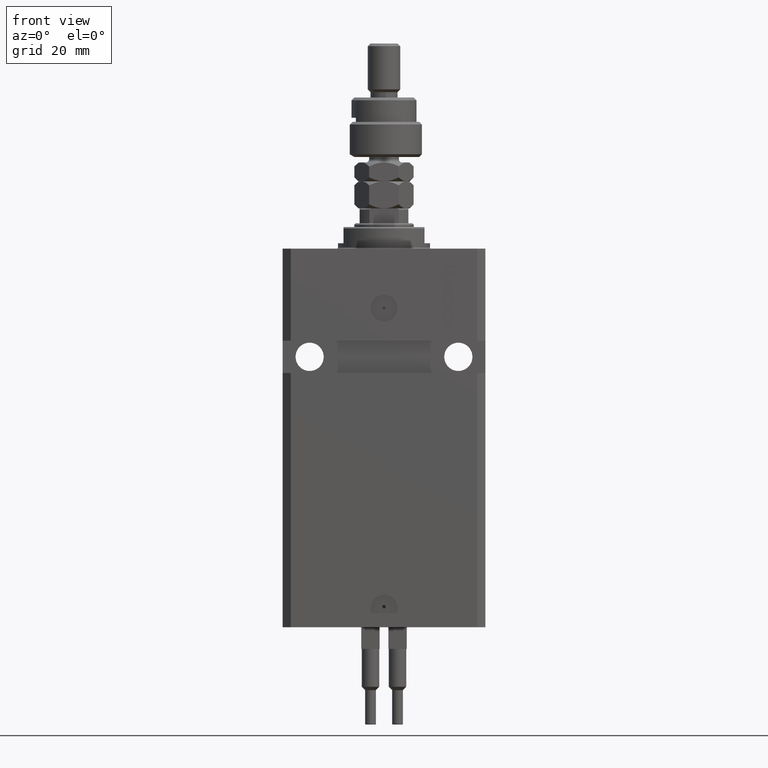
[diagram: clean part render]
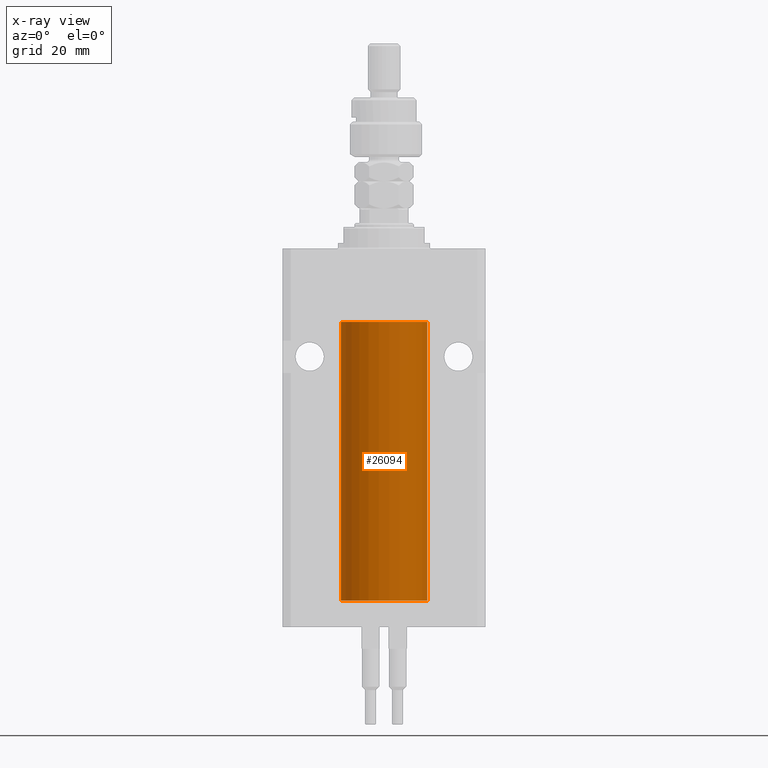
[diagram: x-ray — body ghosted, one internal face saturated and labeled with its STEP entity id]
A machine part, front view, then the same camera in x-ray: the body is ghosted and one INTERNAL B-rep face — a face not visible from any outside direction — is saturated and labeled: STEP entity #26094.
In plain terms, the highlighted cylindrical surface (partial cylindrical patch) has radius 16 mm, axis along (0, 0, 1).
Its self-contained STEP definition (entity closure, byte-faithful):
#822 = CARTESIAN_POINT ( 'NONE',  ( 16.00000000000000000, 0.000000000000000000, -130.0999999999999943 ) ) ;
#1250 = LINE ( 'NONE', #21367, #41615 ) ;
#1508 = DIRECTION ( 'NONE',  ( -0.000000000000000000, -0.000000000000000000, 1.000000000000000000 ) ) ;
#2552 = VECTOR ( 'NONE', #12960, 1000.000000000000000 ) ;
#2652 = EDGE_CURVE ( 'NONE', #13941, #44715, #1250, .T. ) ;
#4684 = LINE ( 'NONE', #822, #2552 ) ;
#4914 = CYLINDRICAL_SURFACE ( 'NONE', #21660, 16.00000000000000000 ) ;
#5956 = VERTEX_POINT ( 'NONE', #39217 ) ;
#7048 = CARTESIAN_POINT ( 'NONE',  ( 16.00000000000013145, 3.665533114689029904E-13, -127.3749999999965752 ) ) ;
#7084 = CARTESIAN_POINT ( 'NONE',  ( -16.00000000000013145, 3.685127464164956467E-13, -128.6250000000034390 ) ) ;
#7307 = CIRCLE ( 'NONE', #29511, 16.00000000000000000 ) ;
#7585 = CARTESIAN_POINT ( 'NONE',  ( -15.99071965633095793, -0.5569502390237165423, -128.3270950821868439 ) ) ;
#8714 = EDGE_CURVE ( 'NONE', #13614, #5956, #26204, .T. ) ;
#8852 = CARTESIAN_POINT ( 'NONE',  ( -15.99069874693027948, -0.5575440858643410103, -127.6738242501145066 ) ) ;
#9541 = CARTESIAN_POINT ( 'NONE',  ( 15.99707785788560521, -0.3267997233067349017, -128.5571521527664345 ) ) ;
#10310 = CARTESIAN_POINT ( 'NONE',  ( 15.99070553365076996, -0.5573460204199366386, -128.3264689786301176 ) ) ;
#12493 = EDGE_CURVE ( 'NONE', #43375, #44715, #7307, .T. ) ;
#12960 = DIRECTION ( 'NONE',  ( -0.000000000000000000, -0.000000000000000000, 1.000000000000000000 ) ) ;
#13452 = DIRECTION ( 'NONE',  ( -0.000000000000000000, -0.000000000000000000, 1.000000000000000000 ) ) ;
#13614 = VERTEX_POINT ( 'NONE', #37859 ) ;
#13777 = EDGE_LOOP ( 'NONE', ( #23627, #23385, #19193, #29576, #37231, #28020, #44033, #48612, #25225 ) ) ;
#13941 = VERTEX_POINT ( 'NONE', #7048 ) ;
#14817 = CARTESIAN_POINT ( 'NONE',  ( 16.00000000000000355, -0.1632201307032006554, -127.3749999999998010 ) ) ;
#15067 = CARTESIAN_POINT ( 'NONE',  ( 15.98778830858102040, -0.6250000000001306732, -127.8350147931928689 ) ) ;
#16457 = CARTESIAN_POINT ( 'NONE',  ( 16.00000000000000000, 0.000000000000000000, -27.10000000000000142 ) ) ;
#16583 = EDGE_CURVE ( 'NONE', #28279, #34253, #44442, .T. ) ;
#17087 = CARTESIAN_POINT ( 'NONE',  ( -16.00000000000000000, 1.959434878635765131E-15, -130.0999999999999943 ) ) ;
#17667 = DIRECTION ( 'NONE',  ( 1.000000000000000000, 0.000000000000000000, 0.000000000000000000 ) ) ;
#17901 = EDGE_CURVE ( 'NONE', #13941, #26396, #44399, .T. ) ;
#18747 = VECTOR ( 'NONE', #25829, 1000.000000000000000 ) ;
#18771 = CARTESIAN_POINT ( 'NONE',  ( -16.00000000000013145, 3.685127464164956467E-13, -128.6250000000034390 ) ) ;
#19170 = CARTESIAN_POINT ( 'NONE',  ( 15.98778830858101685, -0.6250000000001232348, -128.0000000000000000 ) ) ;
#19193 = ORIENTED_EDGE ( 'NONE', *, *, #16583, .T. ) ;
#19214 = DIRECTION ( 'NONE',  ( 0.000000000000000000, 0.000000000000000000, 1.000000000000000000 ) ) ;
#19670 = CARTESIAN_POINT ( 'NONE',  ( 15.99071289786271954, -0.5571474671814827806, -127.6731966548882440 ) ) ;
#20682 = CARTESIAN_POINT ( 'NONE',  ( -15.98779367741636648, -0.6248626626677442619, -128.1653963198503732 ) ) ;
#21367 = CARTESIAN_POINT ( 'NONE',  ( 16.00000000000000000, 0.000000000000000000, -130.0999999999999943 ) ) ;
#21626 = CARTESIAN_POINT ( 'NONE',  ( 16.00000000000000000, -0.1650734421240379612, -128.6250000000000568 ) ) ;
#21660 = AXIS2_PLACEMENT_3D ( 'NONE', #44891, #13452, #36899 ) ;
#21883 = CARTESIAN_POINT ( 'NONE',  ( 16.00000000000000000, 2.199125140786256469E-15, -128.6250000000000284 ) ) ;
#22083 = CARTESIAN_POINT ( 'NONE',  ( -16.00000000000000000, -1.314639473218082033E-14, -127.3749999999999858 ) ) ;
#22086 = AXIS2_PLACEMENT_3D ( 'NONE', #22816, #19214, #35187 ) ;
#22816 = CARTESIAN_POINT ( 'NONE',  ( 0.000000000000000000, 0.000000000000000000, -130.0999999999999943 ) ) ;
#23385 = ORIENTED_EDGE ( 'NONE', *, *, #47263, .T. ) ;
#23627 = ORIENTED_EDGE ( 'NONE', *, *, #8714, .F. ) ;
#25225 = ORIENTED_EDGE ( 'NONE', *, *, #50421, .F. ) ;
#25741 = CARTESIAN_POINT ( 'NONE',  ( 15.98778830858102040, -0.6250000000001159073, -128.1648119328233690 ) ) ;
#25829 = DIRECTION ( 'NONE',  ( -0.000000000000000000, -0.000000000000000000, 1.000000000000000000 ) ) ;
#25840 = B_SPLINE_CURVE_WITH_KNOTS ( 'NONE', 3,
 ( #45368, #25741, #10310, #9541, #21626, #21883 ),
 .UNSPECIFIED., .F., .F.,
 ( 4, 2, 4 ),
 ( 0.002931623410139905066, 0.003419811200989341087, 0.003907998991838777109 ),
 .UNSPECIFIED. ) ;
#26094 = ADVANCED_FACE ( 'NONE', ( #39990 ), #4914, .F. ) ;
#26204 = CIRCLE ( 'NONE', #22086, 16.00000000000000000 ) ;
#26396 = VERTEX_POINT ( 'NONE', #35049 ) ;
#27160 = CARTESIAN_POINT ( 'NONE',  ( -16.00000000000000711, -0.1631344205875858155, -128.6250000000001705 ) ) ;
#28020 = ORIENTED_EDGE ( 'NONE', *, *, #2652, .F. ) ;
#28279 = VERTEX_POINT ( 'NONE', #18771 ) ;
#29511 = AXIS2_PLACEMENT_3D ( 'NONE', #37527, #32879, #17667 ) ;
#29576 = ORIENTED_EDGE ( 'NONE', *, *, #43157, .T. ) ;
#32539 = CARTESIAN_POINT ( 'NONE',  ( -16.00000000000000000, -1.314639473218082033E-14, -127.3749999999999858 ) ) ;
#32879 = DIRECTION ( 'NONE',  ( 0.000000000000000000, 0.000000000000000000, 1.000000000000000000 ) ) ;
#33056 = LINE ( 'NONE', #34081, #18747 ) ;
#34081 = CARTESIAN_POINT ( 'NONE',  ( -16.00000000000000000, 1.959434878635765131E-15, -130.0999999999999943 ) ) ;
#34253 = VERTEX_POINT ( 'NONE', #22083 ) ;
#35049 = CARTESIAN_POINT ( 'NONE',  ( 15.98778830858101685, -0.6250000000001232348, -128.0000000000000000 ) ) ;
#35187 = DIRECTION ( 'NONE',  ( 1.000000000000000000, 0.000000000000000000, 0.000000000000000000 ) ) ;
#36427 = LINE ( 'NONE', #17087, #39499 ) ;
#36899 = DIRECTION ( 'NONE',  ( 1.000000000000000000, 0.000000000000000000, 0.000000000000000000 ) ) ;
#37231 = ORIENTED_EDGE ( 'NONE', *, *, #12493, .T. ) ;
#37527 = CARTESIAN_POINT ( 'NONE',  ( 0.000000000000000000, 0.000000000000000000, -27.10000000000000142 ) ) ;
#37560 = EDGE_CURVE ( 'NONE', #26396, #37931, #25840, .T. ) ;
#37859 = CARTESIAN_POINT ( 'NONE',  ( -16.00000000000000000, 1.959434878635765131E-15, -130.0999999999999943 ) ) ;
#37931 = VERTEX_POINT ( 'NONE', #38373 ) ;
#38373 = CARTESIAN_POINT ( 'NONE',  ( 16.00000000000000000, 2.199125140786256469E-15, -128.6250000000000284 ) ) ;
#38779 = CARTESIAN_POINT ( 'NONE',  ( 15.99708487730508821, -0.3264777333248704561, -127.4426616680992339 ) ) ;
#39217 = CARTESIAN_POINT ( 'NONE',  ( 16.00000000000000000, 0.000000000000000000, -130.0999999999999943 ) ) ;
#39499 = VECTOR ( 'NONE', #49072, 1000.000000000000000 ) ;
#39990 = FACE_OUTER_BOUND ( 'NONE', #13777, .T. ) ;
#41615 = VECTOR ( 'NONE', #1508, 1000.000000000000000 ) ;
#42900 = CARTESIAN_POINT ( 'NONE',  ( -15.99708815688950381, -0.3263115027448994510, -128.5574096919822580 ) ) ;
#43150 = CARTESIAN_POINT ( 'NONE',  ( -16.00000000000000000, -0.1651602165840369285, -127.3749999999999858 ) ) ;
#43157 = EDGE_CURVE ( 'NONE', #34253, #43375, #33056, .T. ) ;
#43375 = VERTEX_POINT ( 'NONE', #50825 ) ;
#43910 = CARTESIAN_POINT ( 'NONE',  ( -15.99707459521409625, -0.3269651631532018987, -127.4429184892856028 ) ) ;
#44033 = ORIENTED_EDGE ( 'NONE', *, *, #17901, .T. ) ;
#44399 = B_SPLINE_CURVE_WITH_KNOTS ( 'NONE', 3,
 ( #50378, #14817, #38779, #19670, #15067, #19170 ),
 .UNSPECIFIED., .F., .F.,
 ( 4, 2, 4 ),
 ( 0.001954221322144558768, 0.002442922366142232134, 0.002931623410139905066 ),
 .UNSPECIFIED. ) ;
#44442 = B_SPLINE_CURVE_WITH_KNOTS ( 'NONE', 3,
 ( #7084, #27160, #42900, #7585, #20682, #47772, #8852, #43910, #43150, #32539 ),
 .UNSPECIFIED., .F., .F.,
 ( 4, 2, 2, 2, 4 ),
 ( 0.001954221322144799027, 0.002442665739568306450, 0.002931110156991814306, 0.003419554574415321728, 0.003907998991838829150 ),
 .UNSPECIFIED. ) ;
#44715 = VERTEX_POINT ( 'NONE', #16457 ) ;
#44891 = CARTESIAN_POINT ( 'NONE',  ( 0.000000000000000000, 0.000000000000000000, -130.0999999999999943 ) ) ;
#45368 = CARTESIAN_POINT ( 'NONE',  ( 15.98778830858101685, -0.6250000000001232348, -128.0000000000000000 ) ) ;
#47263 = EDGE_CURVE ( 'NONE', #13614, #28279, #36427, .T. ) ;
#47772 = CARTESIAN_POINT ( 'NONE',  ( -15.98778295664474491, -0.6251369050462284305, -127.8356432545786561 ) ) ;
#48612 = ORIENTED_EDGE ( 'NONE', *, *, #37560, .T. ) ;
#49072 = DIRECTION ( 'NONE',  ( -0.000000000000000000, -0.000000000000000000, 1.000000000000000000 ) ) ;
#50378 = CARTESIAN_POINT ( 'NONE',  ( 16.00000000000013145, 3.665533114689029904E-13, -127.3749999999965752 ) ) ;
#50421 = EDGE_CURVE ( 'NONE', #5956, #37931, #4684, .T. ) ;
#50825 = CARTESIAN_POINT ( 'NONE',  ( -16.00000000000000000, 1.959434878635765131E-15, -27.10000000000000142 ) ) ;